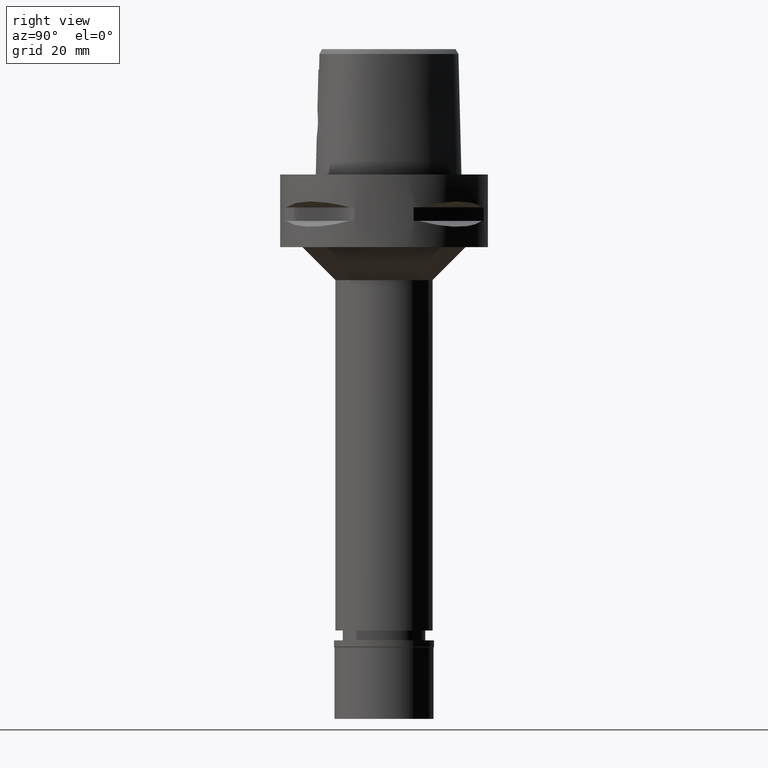
[diagram: clean part render]
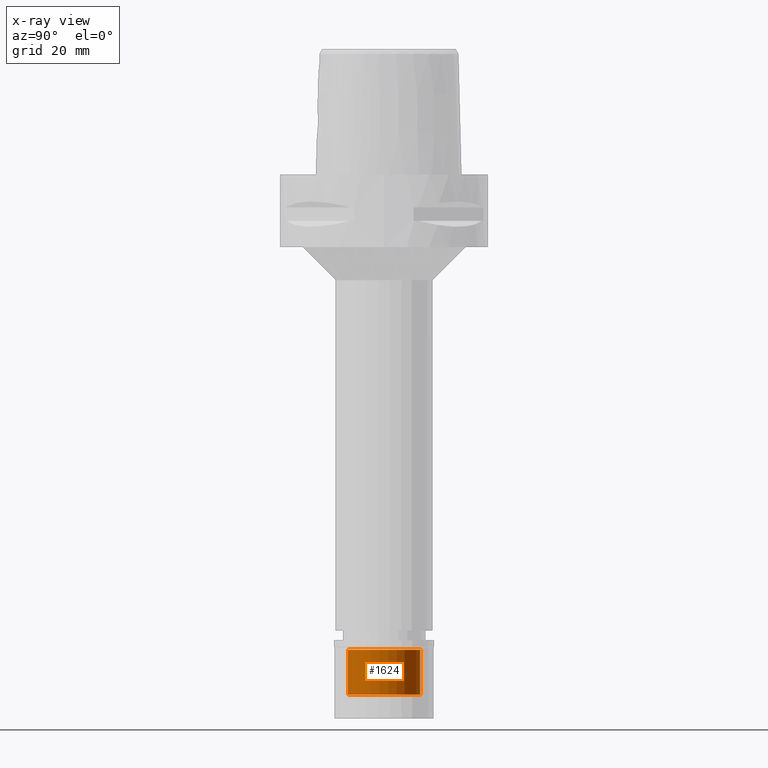
[diagram: x-ray — body ghosted, one internal face saturated and labeled with its STEP entity id]
A machine part, right view, then the same camera in x-ray: the body is ghosted and one INTERNAL B-rep face — a face not visible from any outside direction — is saturated and labeled: STEP entity #1624.
In plain terms, the highlighted cylindrical surface (edge-blend (fillet) strip) has radius 11 mm, axis along (0, 0, -1).
Its self-contained STEP definition (entity closure, byte-faithful):
#52 = CARTESIAN_POINT ( 'NONE',  ( 0.0000000000000000000, 11.00000000000000000, -2.899999999999999911 ) ) ;
#76 = ORIENTED_EDGE ( 'NONE', *, *, #2552, .F. ) ;
#248 = VECTOR ( 'NONE', #4225, 1000.000000000000000 ) ;
#250 = VECTOR ( 'NONE', #4394, 1000.000000000000000 ) ;
#317 = LINE ( 'NONE', #4933, #248 ) ;
#336 = ORIENTED_EDGE ( 'NONE', *, *, #3996, .T. ) ;
#338 = CIRCLE ( 'NONE', #2870, 11.00000000000000000 ) ;
#677 = FACE_OUTER_BOUND ( 'NONE', #845, .T. ) ;
#845 = EDGE_LOOP ( 'NONE', ( #336, #2364, #4943, #76 ) ) ;
#915 = CARTESIAN_POINT ( 'NONE',  ( 0.0000000000000000000, -11.00000000000000000, -16.50000000000000000 ) ) ;
#1001 = AXIS2_PLACEMENT_3D ( 'NONE', #4944, #4167, #3458 ) ;
#1255 = DIRECTION ( 'NONE',  ( 0.0000000000000000000, 0.0000000000000000000, -1.000000000000000000 ) ) ;
#1297 = CARTESIAN_POINT ( 'NONE',  ( 0.0000000000000000000, 0.0000000000000000000, -16.50000000000000000 ) ) ;
#1452 = VERTEX_POINT ( 'NONE', #4384 ) ;
#1551 = CIRCLE ( 'NONE', #3816, 11.00000000000000000 ) ;
#1589 = CARTESIAN_POINT ( 'NONE',  ( 0.0000000000000000000, -11.00000000000000000, -16.50000000000000000 ) ) ;
#1624 = ADVANCED_FACE ( 'NONE', ( #677 ), #3072, .F. ) ;
#1833 = VERTEX_POINT ( 'NONE', #2800 ) ;
#2364 = ORIENTED_EDGE ( 'NONE', *, *, #3599, .T. ) ;
#2552 = EDGE_CURVE ( 'NONE', #1452, #4857, #317, .T. ) ;
#2602 = DIRECTION ( 'NONE',  ( 0.0000000000000000000, 0.0000000000000000000, 1.000000000000000000 ) ) ;
#2800 = CARTESIAN_POINT ( 'NONE',  ( 0.0000000000000000000, -11.00000000000000000, -2.899999999999999911 ) ) ;
#2851 = LINE ( 'NONE', #915, #250 ) ;
#2870 = AXIS2_PLACEMENT_3D ( 'NONE', #1297, #1255, #4056 ) ;
#3072 = CYLINDRICAL_SURFACE ( 'NONE', #1001, 11.00000000000000000 ) ;
#3372 = DIRECTION ( 'NONE',  ( 0.0000000000000000000, -1.000000000000000000, 0.0000000000000000000 ) ) ;
#3458 = DIRECTION ( 'NONE',  ( 0.0000000000000000000, -1.000000000000000000, 0.0000000000000000000 ) ) ;
#3523 = VERTEX_POINT ( 'NONE', #1589 ) ;
#3599 = EDGE_CURVE ( 'NONE', #3523, #1833, #2851, .T. ) ;
#3816 = AXIS2_PLACEMENT_3D ( 'NONE', #4910, #2602, #3372 ) ;
#3996 = EDGE_CURVE ( 'NONE', #1452, #3523, #338, .T. ) ;
#4056 = DIRECTION ( 'NONE',  ( 0.0000000000000000000, 1.000000000000000000, 0.0000000000000000000 ) ) ;
#4167 = DIRECTION ( 'NONE',  ( 0.0000000000000000000, 0.0000000000000000000, -1.000000000000000000 ) ) ;
#4225 = DIRECTION ( 'NONE',  ( 0.0000000000000000000, 0.0000000000000000000, 1.000000000000000000 ) ) ;
#4384 = CARTESIAN_POINT ( 'NONE',  ( 0.0000000000000000000, 11.00000000000000000, -16.50000000000000000 ) ) ;
#4394 = DIRECTION ( 'NONE',  ( 0.0000000000000000000, 0.0000000000000000000, 1.000000000000000000 ) ) ;
#4806 = EDGE_CURVE ( 'NONE', #1833, #4857, #1551, .T. ) ;
#4857 = VERTEX_POINT ( 'NONE', #52 ) ;
#4910 = CARTESIAN_POINT ( 'NONE',  ( 0.0000000000000000000, 0.0000000000000000000, -2.899999999999999911 ) ) ;
#4933 = CARTESIAN_POINT ( 'NONE',  ( 0.0000000000000000000, 11.00000000000000000, -16.50000000000000000 ) ) ;
#4943 = ORIENTED_EDGE ( 'NONE', *, *, #4806, .T. ) ;
#4944 = CARTESIAN_POINT ( 'NONE',  ( 0.0000000000000000000, 0.0000000000000000000, 0.0000000000000000000 ) ) ;